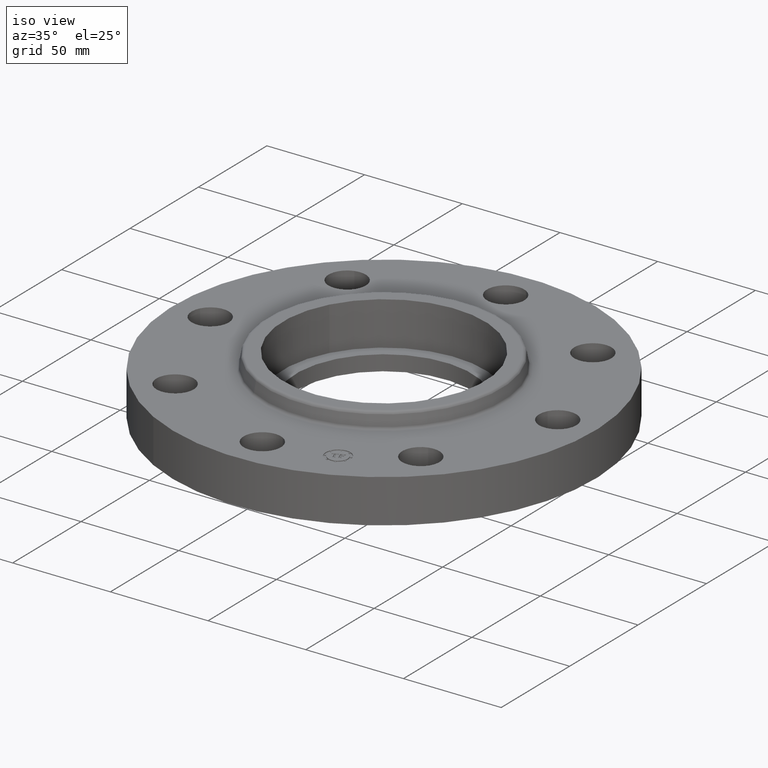
[diagram: clean part render]
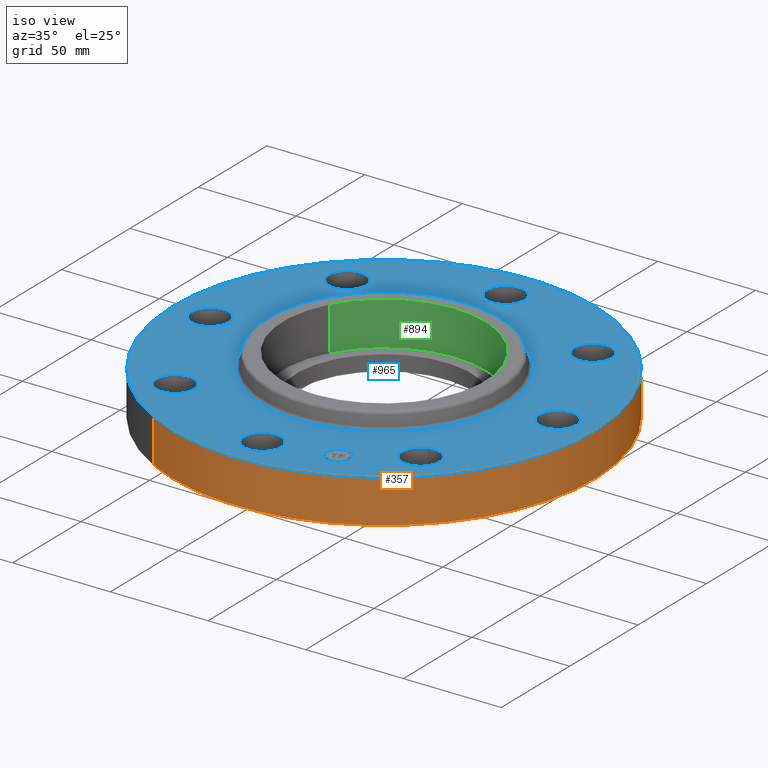
[diagram: same view with three faces highlighted in distinct colors, each labeled with its STEP entity id]
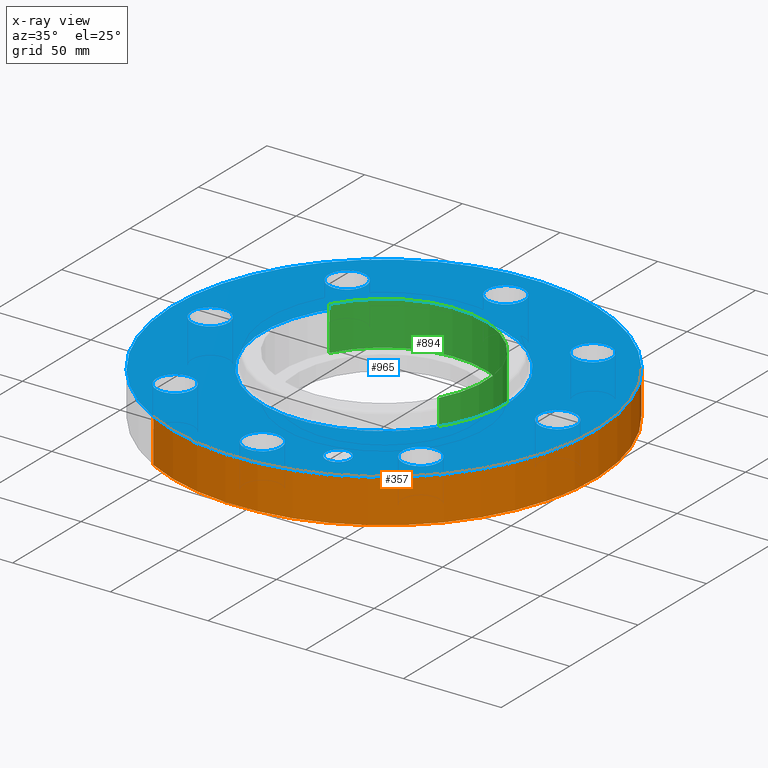
[diagram: x-ray of the same camera — body ghosted, the three highlighted faces saturated]
A machine part, iso view with three faces highlighted in distinct colors.
The next image is the same camera in x-ray (body ghosted, the three faces saturated) — at least one of them is partly hidden behind the body in this view.
Their STEP definitions:

[orange] entity #357 — the highlighted cylindrical surface (partial cylindrical patch) has radius 107.95 mm, axis along (0, 0, -1).
#159=AXIS2_PLACEMENT_3D('Circle Axis2P3D',#157,#158,$) ;
#318=AXIS2_PLACEMENT_3D('Cylinder Axis2P3D',#315,#316,#317) ;
#348=AXIS2_PLACEMENT_3D('Circle Axis2P3D',#346,#347,$) ;
#152=CARTESIAN_POINT('Vertex',(-2.03755853908,-3.72972588805,5.59482469102E-016)) ;
#154=CARTESIAN_POINT('Vertex',(2.03755853908,3.72972588805,5.59482469102E-016)) ;
#157=CARTESIAN_POINT('Axis2P3D Location',(0.,0.,0.)) ;
#315=CARTESIAN_POINT('Axis2P3D Location',(0.,0.,0.595000000002)) ;
#320=CARTESIAN_POINT('Line Origine',(-2.03755853908,-3.72972588805,0.440000000002)) ;
#324=CARTESIAN_POINT('Vertex',(-2.03755853908,-3.72972588805,0.880000000004)) ;
#331=CARTESIAN_POINT('Vertex',(2.03755853908,3.72972588805,0.880000000004)) ;
#334=CARTESIAN_POINT('Line Origine',(2.03755853908,3.72972588805,0.440000000002)) ;
#346=CARTESIAN_POINT('Axis2P3D Location',(0.,0.,0.880000000004)) ;
#158=DIRECTION('Axis2P3D Direction',(0.,0.,-0.0393700787402)) ;
#316=DIRECTION('Axis2P3D Direction',(0.,0.,-0.0393700787402)) ;
#317=DIRECTION('Axis2P3D XDirection',(0.0188750212049,0.0345504945626,0.)) ;
#321=DIRECTION('Vector Direction',(0.,0.,-0.0393700787402)) ;
#335=DIRECTION('Vector Direction',(0.,0.,-0.0393700787402)) ;
#347=DIRECTION('Axis2P3D Direction',(0.,0.,-0.0393700787402)) ;
#322=VECTOR('Line Direction',#321,0.0393700787402) ;
#336=VECTOR('Line Direction',#335,0.0393700787402) ;
#352=ORIENTED_EDGE('',*,*,#161,.F.) ;
#353=ORIENTED_EDGE('',*,*,#338,.T.) ;
#354=ORIENTED_EDGE('',*,*,#350,.T.) ;
#355=ORIENTED_EDGE('',*,*,#326,.F.) ;
#357=ADVANCED_FACE('PartBody',(#356),#319,.T.) ;
#160=CIRCLE('generated circle',#159,4.25000000002) ;
#349=CIRCLE('generated circle',#348,4.25000000002) ;
#319=CYLINDRICAL_SURFACE('generated cylinder',#318,4.25000000002) ;
#161=EDGE_CURVE('',#155,#153,#160,.T.) ;
#326=EDGE_CURVE('',#153,#325,#323,.F.) ;
#338=EDGE_CURVE('',#155,#332,#337,.F.) ;
#350=EDGE_CURVE('',#332,#325,#349,.T.) ;
#351=EDGE_LOOP('',(#352,#353,#354,#355)) ;
#356=FACE_OUTER_BOUND('',#351,.T.) ;
#323=LINE('Line',#320,#322) ;
#337=LINE('Line',#334,#336) ;
#153=VERTEX_POINT('',#152) ;
#155=VERTEX_POINT('',#154) ;
#325=VERTEX_POINT('',#324) ;
#332=VERTEX_POINT('',#331) ;

[blue] entity #965 — the highlighted planar face has unit normal (0, 0, -1).
#329=AXIS2_PLACEMENT_3D('Circle Axis2P3D',#327,#328,$) ;
#348=AXIS2_PLACEMENT_3D('Circle Axis2P3D',#346,#347,$) ;
#365=AXIS2_PLACEMENT_3D('Circle Axis2P3D',#363,#364,$) ;
#400=AXIS2_PLACEMENT_3D('Circle Axis2P3D',#398,#399,$) ;
#550=AXIS2_PLACEMENT_3D('Circle Axis2P3D',#548,#549,$) ;
#562=AXIS2_PLACEMENT_3D('Circle Axis2P3D',#560,#561,$) ;
#593=AXIS2_PLACEMENT_3D('Circle Axis2P3D',#591,#592,$) ;
#605=AXIS2_PLACEMENT_3D('Circle Axis2P3D',#603,#604,$) ;
#636=AXIS2_PLACEMENT_3D('Circle Axis2P3D',#634,#635,$) ;
#648=AXIS2_PLACEMENT_3D('Circle Axis2P3D',#646,#647,$) ;
#679=AXIS2_PLACEMENT_3D('Circle Axis2P3D',#677,#678,$) ;
#691=AXIS2_PLACEMENT_3D('Circle Axis2P3D',#689,#690,$) ;
#722=AXIS2_PLACEMENT_3D('Circle Axis2P3D',#720,#721,$) ;
#734=AXIS2_PLACEMENT_3D('Circle Axis2P3D',#732,#733,$) ;
#765=AXIS2_PLACEMENT_3D('Circle Axis2P3D',#763,#764,$) ;
#777=AXIS2_PLACEMENT_3D('Circle Axis2P3D',#775,#776,$) ;
#808=AXIS2_PLACEMENT_3D('Circle Axis2P3D',#806,#807,$) ;
#820=AXIS2_PLACEMENT_3D('Circle Axis2P3D',#818,#819,$) ;
#851=AXIS2_PLACEMENT_3D('Circle Axis2P3D',#849,#850,$) ;
#863=AXIS2_PLACEMENT_3D('Circle Axis2P3D',#861,#862,$) ;
#905=AXIS2_PLACEMENT_3D('Plane Axis2P3D',#902,#903,#904) ;
#949=AXIS2_PLACEMENT_3D('Circle Axis2P3D',#947,#948,$) ;
#958=AXIS2_PLACEMENT_3D('Circle Axis2P3D',#956,#957,$) ;
#324=CARTESIAN_POINT('Vertex',(-2.03755853908,-3.72972588805,0.880000000004)) ;
#327=CARTESIAN_POINT('Axis2P3D Location',(0.,0.,0.880000000004)) ;
#331=CARTESIAN_POINT('Vertex',(2.03755853908,3.72972588805,0.880000000004)) ;
#346=CARTESIAN_POINT('Axis2P3D Location',(0.,0.,0.880000000004)) ;
#363=CARTESIAN_POINT('Axis2P3D Location',(0.,0.,0.880000000004)) ;
#367=CARTESIAN_POINT('Vertex',(1.17715556791,2.1547688136,0.880000000004)) ;
#369=CARTESIAN_POINT('Vertex',(-1.17715556791,-2.1547688136,0.880000000004)) ;
#398=CARTESIAN_POINT('Axis2P3D Location',(0.,0.,0.880000000004)) ;
#538=CARTESIAN_POINT('Vertex',(2.83470484541,2.58045105834,0.880000000004)) ;
#545=CARTESIAN_POINT('Vertex',(2.11504262292,2.36929640998,0.880000000004)) ;
#548=CARTESIAN_POINT('Axis2P3D Location',(2.47487373416,2.47487373416,0.880000000004)) ;
#560=CARTESIAN_POINT('Axis2P3D Location',(2.47487373416,2.47487373416,0.880000000004)) ;
#581=CARTESIAN_POINT('Vertex',(0.179784576977,3.82909346072,0.880000000004)) ;
#588=CARTESIAN_POINT('Vertex',(-0.179784576977,3.1709065393,0.880000000004)) ;
#591=CARTESIAN_POINT('Axis2P3D Location',(-6.42939569555E-016,3.50000000001,0.880000000004)) ;
#603=CARTESIAN_POINT('Axis2P3D Location',(-6.42939569555E-016,3.50000000001,0.880000000004)) ;
#624=CARTESIAN_POINT('Vertex',(-2.58045105834,2.83470484541,0.880000000004)) ;
#631=CARTESIAN_POINT('Vertex',(-2.36929640998,2.11504262292,0.880000000004)) ;
#634=CARTESIAN_POINT('Axis2P3D Location',(-2.47487373416,2.47487373416,0.880000000004)) ;
#646=CARTESIAN_POINT('Axis2P3D Location',(-2.47487373416,2.47487373416,0.880000000004)) ;
#667=CARTESIAN_POINT('Vertex',(-3.82909346072,0.179784576977,0.880000000004)) ;
#674=CARTESIAN_POINT('Vertex',(-3.1709065393,-0.179784576977,0.880000000004)) ;
#677=CARTESIAN_POINT('Axis2P3D Location',(-3.50000000001,-4.28626379703E-016,0.880000000004)) ;
#689=CARTESIAN_POINT('Axis2P3D Location',(-3.50000000001,-4.28626379703E-016,0.880000000004)) ;
#710=CARTESIAN_POINT('Vertex',(-2.83470484541,-2.58045105834,0.880000000004)) ;
#717=CARTESIAN_POINT('Vertex',(-2.11504262292,-2.36929640998,0.880000000004)) ;
#720=CARTESIAN_POINT('Axis2P3D Location',(-2.47487373416,-2.47487373416,0.880000000004)) ;
#732=CARTESIAN_POINT('Axis2P3D Location',(-2.47487373416,-2.47487373416,0.880000000004)) ;
#753=CARTESIAN_POINT('Vertex',(-0.179784576977,-3.82909346072,0.880000000004)) ;
#760=CARTESIAN_POINT('Vertex',(0.179784576977,-3.1709065393,0.880000000004)) ;
#763=CARTESIAN_POINT('Axis2P3D Location',(-3.45169279251E-016,-3.50000000001,0.880000000004)) ;
#775=CARTESIAN_POINT('Axis2P3D Location',(-3.45169279251E-016,-3.50000000001,0.880000000004)) ;
#796=CARTESIAN_POINT('Vertex',(2.58045105834,-2.83470484541,0.880000000004)) ;
#803=CARTESIAN_POINT('Vertex',(2.36929640998,-2.11504262292,0.880000000004)) ;
#806=CARTESIAN_POINT('Axis2P3D Location',(2.47487373416,-2.47487373416,0.880000000004)) ;
#818=CARTESIAN_POINT('Axis2P3D Location',(2.47487373416,-2.47487373416,0.880000000004)) ;
#839=CARTESIAN_POINT('Vertex',(3.1709065393,0.179784576977,0.880000000004)) ;
#846=CARTESIAN_POINT('Vertex',(3.82909346072,-0.179784576977,0.880000000004)) ;
#849=CARTESIAN_POINT('Axis2P3D Location',(3.50000000001,0.,0.880000000004)) ;
#861=CARTESIAN_POINT('Axis2P3D Location',(3.50000000001,0.,0.880000000004)) ;
#902=CARTESIAN_POINT('Axis2P3D Location',(0.,4.25000000002,0.880000000004)) ;
#947=CARTESIAN_POINT('Axis2P3D Location',(1.33939201328,-3.2335783638,0.880000000004)) ;
#951=CARTESIAN_POINT('Vertex',(1.56805219758,-3.13886421429,0.880000000004)) ;
#953=CARTESIAN_POINT('Vertex',(1.11073182899,-3.32829251331,0.880000000004)) ;
#956=CARTESIAN_POINT('Axis2P3D Location',(1.33939201328,-3.2335783638,0.880000000004)) ;
#328=DIRECTION('Axis2P3D Direction',(0.,0.,-0.0393700787402)) ;
#347=DIRECTION('Axis2P3D Direction',(0.,0.,-0.0393700787402)) ;
#364=DIRECTION('Axis2P3D Direction',(0.,0.,-0.0393700787402)) ;
#399=DIRECTION('Axis2P3D Direction',(0.,0.,-0.0393700787402)) ;
#549=DIRECTION('Axis2P3D Direction',(0.,0.,-0.0393700787402)) ;
#561=DIRECTION('Axis2P3D Direction',(0.,0.,-0.0393700787402)) ;
#592=DIRECTION('Axis2P3D Direction',(0.,0.,-0.0393700787402)) ;
#604=DIRECTION('Axis2P3D Direction',(0.,0.,-0.0393700787402)) ;
#635=DIRECTION('Axis2P3D Direction',(0.,0.,-0.0393700787402)) ;
#647=DIRECTION('Axis2P3D Direction',(0.,0.,-0.0393700787402)) ;
#678=DIRECTION('Axis2P3D Direction',(-0.,0.,-0.0393700787402)) ;
#690=DIRECTION('Axis2P3D Direction',(-0.,0.,-0.0393700787402)) ;
#721=DIRECTION('Axis2P3D Direction',(-0.,0.,-0.0393700787402)) ;
#733=DIRECTION('Axis2P3D Direction',(-0.,0.,-0.0393700787402)) ;
#764=DIRECTION('Axis2P3D Direction',(0.,-0.,-0.0393700787402)) ;
#776=DIRECTION('Axis2P3D Direction',(0.,-0.,-0.0393700787402)) ;
#807=DIRECTION('Axis2P3D Direction',(0.,-0.,-0.0393700787402)) ;
#819=DIRECTION('Axis2P3D Direction',(0.,-0.,-0.0393700787402)) ;
#850=DIRECTION('Axis2P3D Direction',(0.,-0.,-0.0393700787402)) ;
#862=DIRECTION('Axis2P3D Direction',(0.,-0.,-0.0393700787402)) ;
#903=DIRECTION('Axis2P3D Direction',(0.,0.,-0.0393700787402)) ;
#904=DIRECTION('Axis2P3D XDirection',(0.0393700787402,0.,0.)) ;
#948=DIRECTION('Axis2P3D Direction',(0.,0.,-0.0393700787402)) ;
#957=DIRECTION('Axis2P3D Direction',(0.,0.,-0.0393700787402)) ;
#908=ORIENTED_EDGE('',*,*,#350,.F.) ;
#909=ORIENTED_EDGE('',*,*,#333,.F.) ;
#912=ORIENTED_EDGE('',*,*,#853,.T.) ;
#913=ORIENTED_EDGE('',*,*,#865,.T.) ;
#916=ORIENTED_EDGE('',*,*,#402,.T.) ;
#917=ORIENTED_EDGE('',*,*,#371,.T.) ;
#920=ORIENTED_EDGE('',*,*,#810,.T.) ;
#921=ORIENTED_EDGE('',*,*,#822,.T.) ;
#924=ORIENTED_EDGE('',*,*,#767,.T.) ;
#925=ORIENTED_EDGE('',*,*,#779,.T.) ;
#928=ORIENTED_EDGE('',*,*,#724,.T.) ;
#929=ORIENTED_EDGE('',*,*,#736,.T.) ;
#932=ORIENTED_EDGE('',*,*,#681,.T.) ;
#933=ORIENTED_EDGE('',*,*,#693,.T.) ;
#936=ORIENTED_EDGE('',*,*,#638,.T.) ;
#937=ORIENTED_EDGE('',*,*,#650,.T.) ;
#940=ORIENTED_EDGE('',*,*,#595,.T.) ;
#941=ORIENTED_EDGE('',*,*,#607,.T.) ;
#944=ORIENTED_EDGE('',*,*,#552,.T.) ;
#945=ORIENTED_EDGE('',*,*,#564,.T.) ;
#962=ORIENTED_EDGE('',*,*,#955,.T.) ;
#963=ORIENTED_EDGE('',*,*,#960,.T.) ;
#914=FACE_BOUND('',#911,.T.) ;
#918=FACE_BOUND('',#915,.T.) ;
#922=FACE_BOUND('',#919,.T.) ;
#926=FACE_BOUND('',#923,.T.) ;
#930=FACE_BOUND('',#927,.T.) ;
#934=FACE_BOUND('',#931,.T.) ;
#938=FACE_BOUND('',#935,.T.) ;
#942=FACE_BOUND('',#939,.T.) ;
#946=FACE_BOUND('',#943,.T.) ;
#964=FACE_BOUND('',#961,.T.) ;
#965=ADVANCED_FACE('PartBody',(#910,#914,#918,#922,#926,#930,#934,#938,#942,#946,#964),#906,.F.) ;
#330=CIRCLE('generated circle',#329,4.25000000002) ;
#349=CIRCLE('generated circle',#348,4.25000000002) ;
#366=CIRCLE('generated circle',#365,2.45534597788) ;
#401=CIRCLE('generated circle',#400,2.45534597788) ;
#551=CIRCLE('generated circle',#550,0.375000000002) ;
#563=CIRCLE('generated circle',#562,0.375000000002) ;
#594=CIRCLE('generated circle',#593,0.375000000002) ;
#606=CIRCLE('generated circle',#605,0.375000000002) ;
#637=CIRCLE('generated circle',#636,0.375000000002) ;
#649=CIRCLE('generated circle',#648,0.375000000002) ;
#680=CIRCLE('generated circle',#679,0.375000000001) ;
#692=CIRCLE('generated circle',#691,0.375000000001) ;
#723=CIRCLE('generated circle',#722,0.375000000002) ;
#735=CIRCLE('generated circle',#734,0.375000000002) ;
#766=CIRCLE('generated circle',#765,0.375000000002) ;
#778=CIRCLE('generated circle',#777,0.375000000002) ;
#809=CIRCLE('generated circle',#808,0.375000000002) ;
#821=CIRCLE('generated circle',#820,0.375000000002) ;
#852=CIRCLE('generated circle',#851,0.375000000002) ;
#864=CIRCLE('generated circle',#863,0.375000000002) ;
#950=CIRCLE('generated circle',#949,0.247500000001) ;
#959=CIRCLE('generated circle',#958,0.247500000001) ;
#333=EDGE_CURVE('',#325,#332,#330,.T.) ;
#350=EDGE_CURVE('',#332,#325,#349,.T.) ;
#371=EDGE_CURVE('',#368,#370,#366,.T.) ;
#402=EDGE_CURVE('',#370,#368,#401,.T.) ;
#552=EDGE_CURVE('',#539,#546,#551,.T.) ;
#564=EDGE_CURVE('',#546,#539,#563,.T.) ;
#595=EDGE_CURVE('',#582,#589,#594,.T.) ;
#607=EDGE_CURVE('',#589,#582,#606,.T.) ;
#638=EDGE_CURVE('',#625,#632,#637,.T.) ;
#650=EDGE_CURVE('',#632,#625,#649,.T.) ;
#681=EDGE_CURVE('',#668,#675,#680,.T.) ;
#693=EDGE_CURVE('',#675,#668,#692,.T.) ;
#724=EDGE_CURVE('',#711,#718,#723,.T.) ;
#736=EDGE_CURVE('',#718,#711,#735,.T.) ;
#767=EDGE_CURVE('',#754,#761,#766,.T.) ;
#779=EDGE_CURVE('',#761,#754,#778,.T.) ;
#810=EDGE_CURVE('',#797,#804,#809,.T.) ;
#822=EDGE_CURVE('',#804,#797,#821,.T.) ;
#853=EDGE_CURVE('',#840,#847,#852,.T.) ;
#865=EDGE_CURVE('',#847,#840,#864,.T.) ;
#955=EDGE_CURVE('',#952,#954,#950,.T.) ;
#960=EDGE_CURVE('',#954,#952,#959,.T.) ;
#907=EDGE_LOOP('',(#908,#909)) ;
#911=EDGE_LOOP('',(#912,#913)) ;
#915=EDGE_LOOP('',(#916,#917)) ;
#919=EDGE_LOOP('',(#920,#921)) ;
#923=EDGE_LOOP('',(#924,#925)) ;
#927=EDGE_LOOP('',(#928,#929)) ;
#931=EDGE_LOOP('',(#932,#933)) ;
#935=EDGE_LOOP('',(#936,#937)) ;
#939=EDGE_LOOP('',(#940,#941)) ;
#943=EDGE_LOOP('',(#944,#945)) ;
#961=EDGE_LOOP('',(#962,#963)) ;
#910=FACE_OUTER_BOUND('',#907,.T.) ;
#906=PLANE('',#905) ;
#325=VERTEX_POINT('',#324) ;
#332=VERTEX_POINT('',#331) ;
#368=VERTEX_POINT('',#367) ;
#370=VERTEX_POINT('',#369) ;
#539=VERTEX_POINT('',#538) ;
#546=VERTEX_POINT('',#545) ;
#582=VERTEX_POINT('',#581) ;
#589=VERTEX_POINT('',#588) ;
#625=VERTEX_POINT('',#624) ;
#632=VERTEX_POINT('',#631) ;
#668=VERTEX_POINT('',#667) ;
#675=VERTEX_POINT('',#674) ;
#711=VERTEX_POINT('',#710) ;
#718=VERTEX_POINT('',#717) ;
#754=VERTEX_POINT('',#753) ;
#761=VERTEX_POINT('',#760) ;
#797=VERTEX_POINT('',#796) ;
#804=VERTEX_POINT('',#803) ;
#840=VERTEX_POINT('',#839) ;
#847=VERTEX_POINT('',#846) ;
#952=VERTEX_POINT('',#951) ;
#954=VERTEX_POINT('',#953) ;

[green] entity #894 — the highlighted cylindrical surface (partial cylindrical patch) has radius 51.689 mm, axis along (0, 0, -1).
#42=AXIS2_PLACEMENT_3D('Circle Axis2P3D',#40,#41,$) ;
#512=AXIS2_PLACEMENT_3D('Circle Axis2P3D',#510,#511,$) ;
#876=AXIS2_PLACEMENT_3D('Cylinder Axis2P3D',#873,#874,#875) ;
#40=CARTESIAN_POINT('Axis2P3D Location',(0.,-6.99353086378E-017,0.310000000001)) ;
#44=CARTESIAN_POINT('Vertex',(-1.78588051345,0.975630971063,0.310000000001)) ;
#46=CARTESIAN_POINT('Vertex',(1.78588051345,-0.975630971063,0.310000000001)) ;
#510=CARTESIAN_POINT('Axis2P3D Location',(0.,0.,1.19)) ;
#514=CARTESIAN_POINT('Vertex',(-1.78588051345,0.975630971063,1.19)) ;
#516=CARTESIAN_POINT('Vertex',(1.78588051345,-0.975630971063,1.19)) ;
#873=CARTESIAN_POINT('Axis2P3D Location',(0.,-6.99353086378E-017,1.18606299213)) ;
#878=CARTESIAN_POINT('Line Origine',(-1.78588051345,0.975630971063,0.750000000003)) ;
#883=CARTESIAN_POINT('Line Origine',(1.78588051345,-0.975630971063,0.750000000003)) ;
#41=DIRECTION('Axis2P3D Direction',(0.,0.,-0.0393700787402)) ;
#511=DIRECTION('Axis2P3D Direction',(0.,0.,-0.0393700787402)) ;
#874=DIRECTION('Axis2P3D Direction',(0.,0.,-0.0393700787402)) ;
#875=DIRECTION('Axis2P3D XDirection',(0.0345504945626,-0.0188750212049,0.)) ;
#879=DIRECTION('Vector Direction',(0.,0.,-0.0393700787402)) ;
#884=DIRECTION('Vector Direction',(0.,0.,-0.0393700787402)) ;
#880=VECTOR('Line Direction',#879,0.0393700787402) ;
#885=VECTOR('Line Direction',#884,0.0393700787402) ;
#889=ORIENTED_EDGE('',*,*,#518,.F.) ;
#890=ORIENTED_EDGE('',*,*,#882,.F.) ;
#891=ORIENTED_EDGE('',*,*,#48,.T.) ;
#892=ORIENTED_EDGE('',*,*,#887,.T.) ;
#894=ADVANCED_FACE('PartBody',(#893),#877,.F.) ;
#43=CIRCLE('generated circle',#42,2.03500000001) ;
#513=CIRCLE('generated circle',#512,2.03500000001) ;
#877=CYLINDRICAL_SURFACE('generated cylinder',#876,2.03500000001) ;
#48=EDGE_CURVE('',#45,#47,#43,.T.) ;
#518=EDGE_CURVE('',#515,#517,#513,.T.) ;
#882=EDGE_CURVE('',#45,#515,#881,.F.) ;
#887=EDGE_CURVE('',#47,#517,#886,.F.) ;
#888=EDGE_LOOP('',(#889,#890,#891,#892)) ;
#893=FACE_OUTER_BOUND('',#888,.T.) ;
#881=LINE('Line',#878,#880) ;
#886=LINE('Line',#883,#885) ;
#45=VERTEX_POINT('',#44) ;
#47=VERTEX_POINT('',#46) ;
#515=VERTEX_POINT('',#514) ;
#517=VERTEX_POINT('',#516) ;